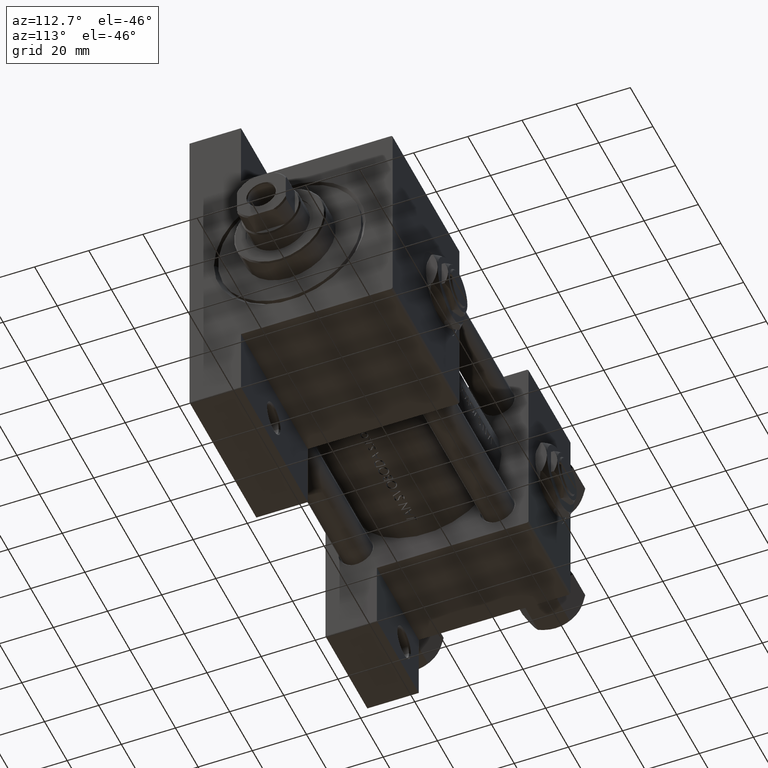
[diagram: clean part render]
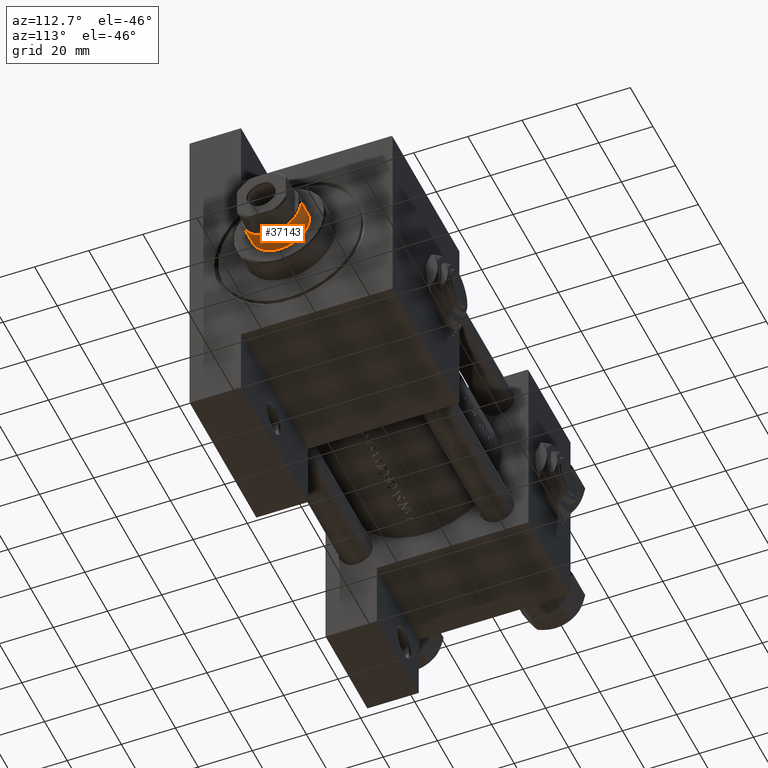
[diagram: same view with one face highlighted and labeled with its STEP entity id]
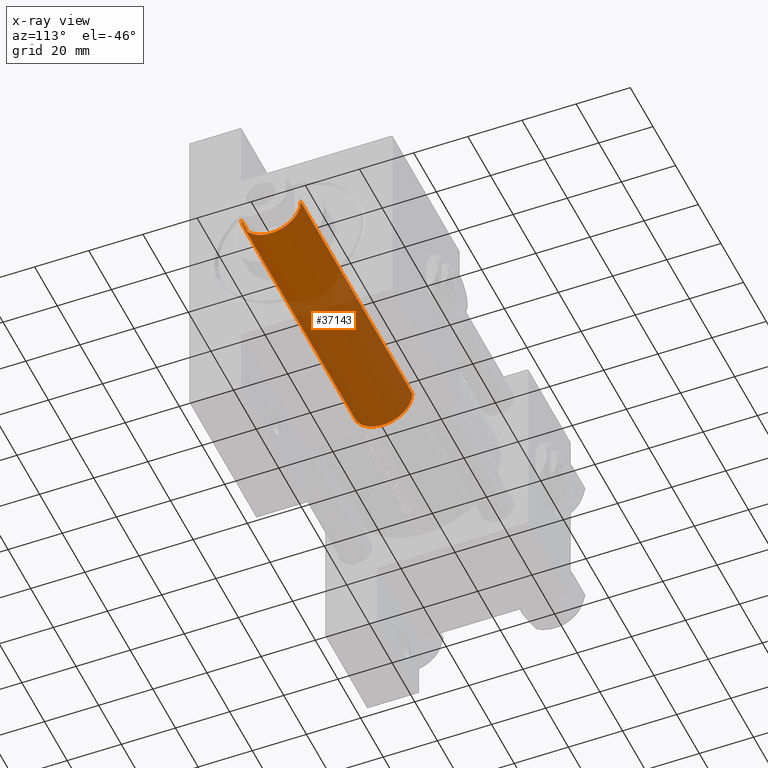
[diagram: x-ray of the same camera — body ghosted, the highlighted face saturated]
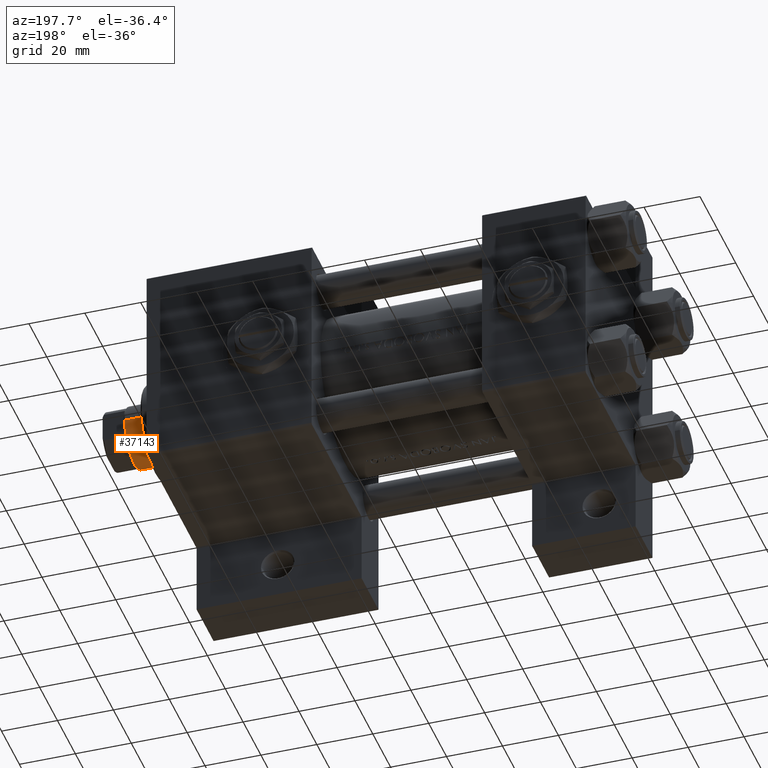
[diagram: same view with one face highlighted and labeled with its STEP entity id]
A machine part, auxiliary view. The second image highlights one B-rep face of the part: STEP entity #37143.
The next image is the same camera in x-ray: the body ghosted, the highlighted face saturated — about 65% of this face is hidden behind the body in this view.
A second angle (auxiliary view) of the same face is appended — the face is thin or edge-on in the first view.
In plain terms, the highlighted cylindrical surface (edge-blend (fillet) strip) has radius 11 mm, axis along (-1, 0, 0).
Its self-contained STEP definition (entity closure, byte-faithful):
#714 = DIRECTION ( 'NONE',  ( 0.000000000000000000, 0.000000000000000000, 1.000000000000000000 ) ) ;
#3972 = EDGE_CURVE ( 'NONE', #11134, #23183, #11281, .T. ) ;
#4889 = CARTESIAN_POINT ( 'NONE',  ( -11.00000000000000000, 0.000000000000000000, 137.0000000000000000 ) ) ;
#5381 = VECTOR ( 'NONE', #42770, 1000.000000000000000 ) ;
#5512 = DIRECTION ( 'NONE',  ( 1.000000000000000000, 0.000000000000000000, 0.000000000000000000 ) ) ;
#7256 = DIRECTION ( 'NONE',  ( -0.000000000000000000, -0.000000000000000000, -1.000000000000000000 ) ) ;
#8801 = EDGE_LOOP ( 'NONE', ( #21890, #37893, #34933, #40455 ) ) ;
#11134 = VERTEX_POINT ( 'NONE', #24098 ) ;
#11171 = CARTESIAN_POINT ( 'NONE',  ( 0.000000000000000000, 0.000000000000000000, 38.00000000000000000 ) ) ;
#11229 = CYLINDRICAL_SURFACE ( 'NONE', #21705, 11.00000000000000000 ) ;
#11281 = CIRCLE ( 'NONE', #45311, 11.00000000000000000 ) ;
#21705 = AXIS2_PLACEMENT_3D ( 'NONE', #26093, #7256, #26329 ) ;
#21890 = ORIENTED_EDGE ( 'NONE', *, *, #41732, .T. ) ;
#23183 = VERTEX_POINT ( 'NONE', #42938 ) ;
#24098 = CARTESIAN_POINT ( 'NONE',  ( 11.00000000000000000, 1.347111479062088405E-15, 38.00000000000000000 ) ) ;
#26093 = CARTESIAN_POINT ( 'NONE',  ( 0.000000000000000000, 0.000000000000000000, 137.0000000000000000 ) ) ;
#26329 = DIRECTION ( 'NONE',  ( -1.000000000000000000, 0.000000000000000000, 0.000000000000000000 ) ) ;
#26612 = EDGE_CURVE ( 'NONE', #43113, #11134, #46472, .T. ) ;
#27652 = CARTESIAN_POINT ( 'NONE',  ( 11.00000000000000000, 1.347111479062088405E-15, 137.0000000000000000 ) ) ;
#31183 = DIRECTION ( 'NONE',  ( -0.000000000000000000, -0.000000000000000000, -1.000000000000000000 ) ) ;
#34933 = ORIENTED_EDGE ( 'NONE', *, *, #3972, .T. ) ;
#35432 = VECTOR ( 'NONE', #31183, 1000.000000000000000 ) ;
#37143 = ADVANCED_FACE ( 'NONE', ( #48657 ), #11229, .T. ) ;
#37618 = CARTESIAN_POINT ( 'NONE',  ( 11.00000000000000000, 1.347111479062088405E-15, 136.5000000000000000 ) ) ;
#37893 = ORIENTED_EDGE ( 'NONE', *, *, #26612, .T. ) ;
#39006 = CARTESIAN_POINT ( 'NONE',  ( -11.00000000000000000, 0.000000000000000000, 136.5000000000000000 ) ) ;
#39955 = AXIS2_PLACEMENT_3D ( 'NONE', #42944, #46902, #5512 ) ;
#40455 = ORIENTED_EDGE ( 'NONE', *, *, #48974, .F. ) ;
#41411 = DIRECTION ( 'NONE',  ( 1.000000000000000000, 0.000000000000000000, 0.000000000000000000 ) ) ;
#41732 = EDGE_CURVE ( 'NONE', #44571, #43113, #48639, .T. ) ;
#42590 = LINE ( 'NONE', #4889, #35432 ) ;
#42770 = DIRECTION ( 'NONE',  ( -0.000000000000000000, -0.000000000000000000, -1.000000000000000000 ) ) ;
#42938 = CARTESIAN_POINT ( 'NONE',  ( -11.00000000000000000, 0.000000000000000000, 38.00000000000000000 ) ) ;
#42944 = CARTESIAN_POINT ( 'NONE',  ( 0.000000000000000000, 0.000000000000000000, 136.5000000000000000 ) ) ;
#43113 = VERTEX_POINT ( 'NONE', #37618 ) ;
#44571 = VERTEX_POINT ( 'NONE', #39006 ) ;
#45311 = AXIS2_PLACEMENT_3D ( 'NONE', #11171, #714, #41411 ) ;
#46472 = LINE ( 'NONE', #27652, #5381 ) ;
#46902 = DIRECTION ( 'NONE',  ( 0.000000000000000000, 0.000000000000000000, -1.000000000000000000 ) ) ;
#48639 = CIRCLE ( 'NONE', #39955, 11.00000000000000000 ) ;
#48657 = FACE_OUTER_BOUND ( 'NONE', #8801, .T. ) ;
#48974 = EDGE_CURVE ( 'NONE', #44571, #23183, #42590, .T. ) ;